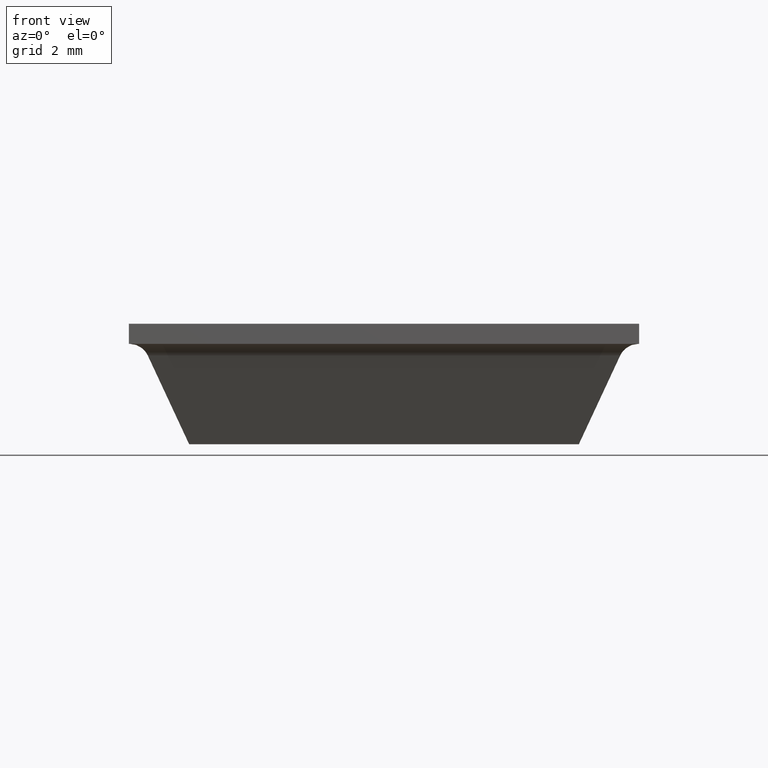
[diagram: clean part render]
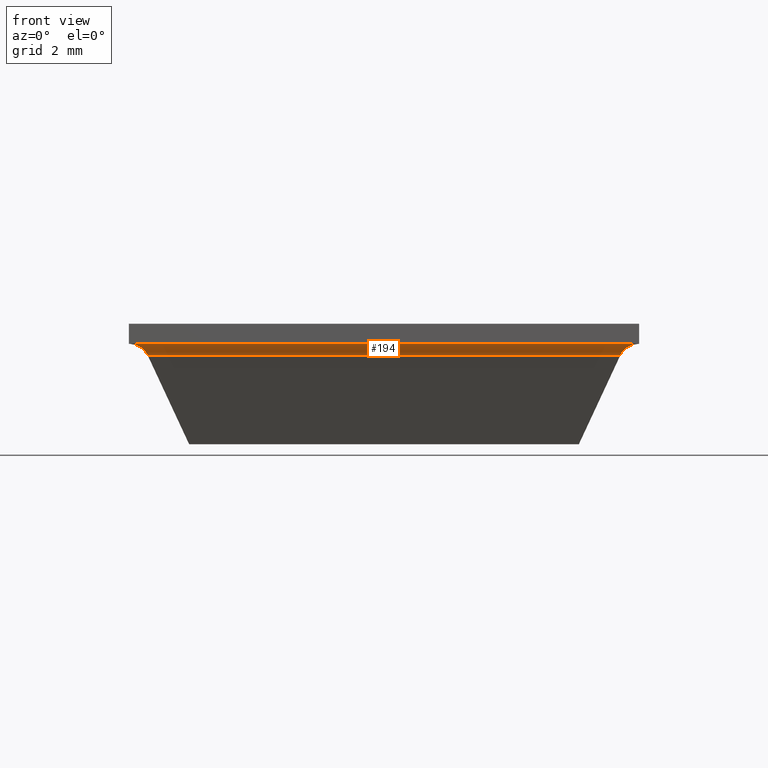
[diagram: same view with one face highlighted and labeled with its STEP entity id]
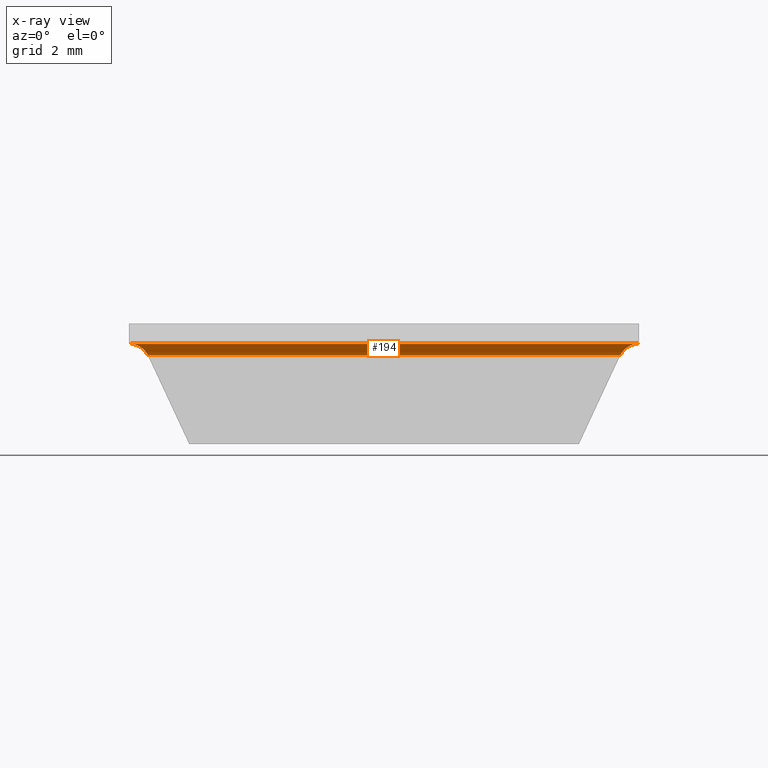
[diagram: x-ray of the same camera — body ghosted, the highlighted face saturated]
A machine part, front view. The second image highlights one B-rep face of the part: STEP entity #194.
The next image is the same camera in x-ray: the body ghosted, the highlighted face saturated — about 0% of this face is hidden behind the body in this view.
In plain terms, the highlighted face is a freeform B-spline surface patch.
Its self-contained STEP definition (entity closure, byte-faithful):
#58=CARTESIAN_POINT('',(-5.881150035810770,-5.881150035810910,2.211309076796455));
#59=VERTEX_POINT('',#58);
#60=CARTESIAN_POINT('',(-6.334303954544160,-6.334303954544160,2.500000000000000));
#61=VERTEX_POINT('',#60);
#62=CARTESIAN_POINT('',(-5.881150035810770,-5.881150035810910,2.211309076796455));
#63=CARTESIAN_POINT('',(-6.015768782200882,-6.015768782200882,2.500000000000001));
#64=CARTESIAN_POINT('',(-6.334303954544160,-6.334303954544160,2.500000000000000));
#72=(BOUNDED_CURVE()B_SPLINE_CURVE(2,(#62,#63,#64),.UNSPECIFIED.,.F.,.U.)CURVE()GEOMETRIC_REPRESENTATION_ITEM()QUASI_UNIFORM_CURVE()RATIONAL_B_SPLINE_CURVE((1.0,0.843391413755473,1.0))REPRESENTATION_ITEM(''));
#73=EDGE_CURVE('',#59,#61,#72,.T.);
#150=CARTESIAN_POINT('',(-6.651019152271369,-6.347392428698098,2.499828662487778));
#151=CARTESIAN_POINT('',(6.658937032214548,-6.347392428698098,2.499828662487778));
#152=CARTESIAN_POINT('',(-6.651019152271368,-6.000215764091201,2.508919803397826));
#153=CARTESIAN_POINT('',(6.658937032214548,-6.000215764091201,2.508919803397826));
#154=CARTESIAN_POINT('',(-6.651019152271369,-5.870493255542651,2.186760904612636));
#155=CARTESIAN_POINT('',(6.658937032214548,-5.870493255542651,2.186760904612636));
#163=(BOUNDED_SURFACE()B_SPLINE_SURFACE(1,2,((#150,#152,#154),(#151,#153,#155)),.UNSPECIFIED.,.F.,.F.,.U.)B_SPLINE_SURFACE_WITH_KNOTS((2,2),(3,3),(0.0,13.309956184485920),(0.0,0.993420241738949),.UNSPECIFIED.)GEOMETRIC_REPRESENTATION_ITEM()RATIONAL_B_SPLINE_SURFACE(((1.0,0.820341980119575,0.997635787319055),(1.0,0.820341980119575,0.997635787319055)))REPRESENTATION_ITEM('')SURFACE());
#164=CARTESIAN_POINT('',(5.881150035810800,-5.881150035810720,2.211309076796510));
#165=VERTEX_POINT('',#164);
#166=CARTESIAN_POINT('',(6.334303954544160,-6.334303954544160,2.500000000000000));
#167=VERTEX_POINT('',#166);
#168=CARTESIAN_POINT('',(5.881150035810800,-5.881150035810720,2.211309076796510));
#169=CARTESIAN_POINT('',(6.015768782200871,-6.015768782200871,2.500000000000000));
#170=CARTESIAN_POINT('',(6.334303954544160,-6.334303954544160,2.500000000000000));
#178=(BOUNDED_CURVE()B_SPLINE_CURVE(2,(#168,#169,#170),.UNSPECIFIED.,.F.,.U.)CURVE()GEOMETRIC_REPRESENTATION_ITEM()QUASI_UNIFORM_CURVE()RATIONAL_B_SPLINE_CURVE((1.0,0.843391413755462,1.0))REPRESENTATION_ITEM(''));
#179=EDGE_CURVE('',#165,#167,#178,.T.);
#180=ORIENTED_EDGE('',*,*,#179,.T.);
#181=CARTESIAN_POINT('',(-6.334303954544160,-6.334303954544160,2.500000000000000));
#182=CARTESIAN_POINT('',(6.334303954544160,-6.334303954544160,2.500000000000000));
#183=QUASI_UNIFORM_CURVE('',1,(#181,#182),.UNSPECIFIED.,.F.,.U.);
#184=EDGE_CURVE('',#61,#167,#183,.T.);
#185=ORIENTED_EDGE('',*,*,#184,.F.);
#186=ORIENTED_EDGE('',*,*,#73,.F.);
#187=CARTESIAN_POINT('',(5.881150035810800,-5.881150035810720,2.211309076796510));
#188=CARTESIAN_POINT('',(-5.881150035810770,-5.881150035810910,2.211309076796455));
#189=QUASI_UNIFORM_CURVE('',1,(#187,#188),.UNSPECIFIED.,.F.,.U.);
#190=EDGE_CURVE('',#165,#59,#189,.T.);
#191=ORIENTED_EDGE('',*,*,#190,.F.);
#192=EDGE_LOOP('',(#180,#185,#186,#191));
#193=FACE_OUTER_BOUND('',#192,.T.);
#194=ADVANCED_FACE('',(#193),#163,.F.);